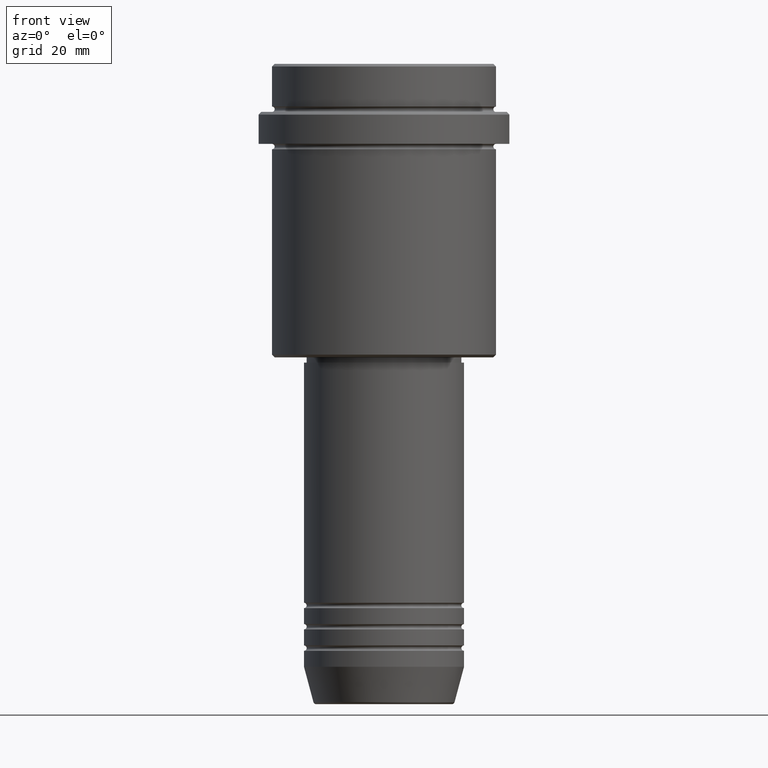
[diagram: clean part render]
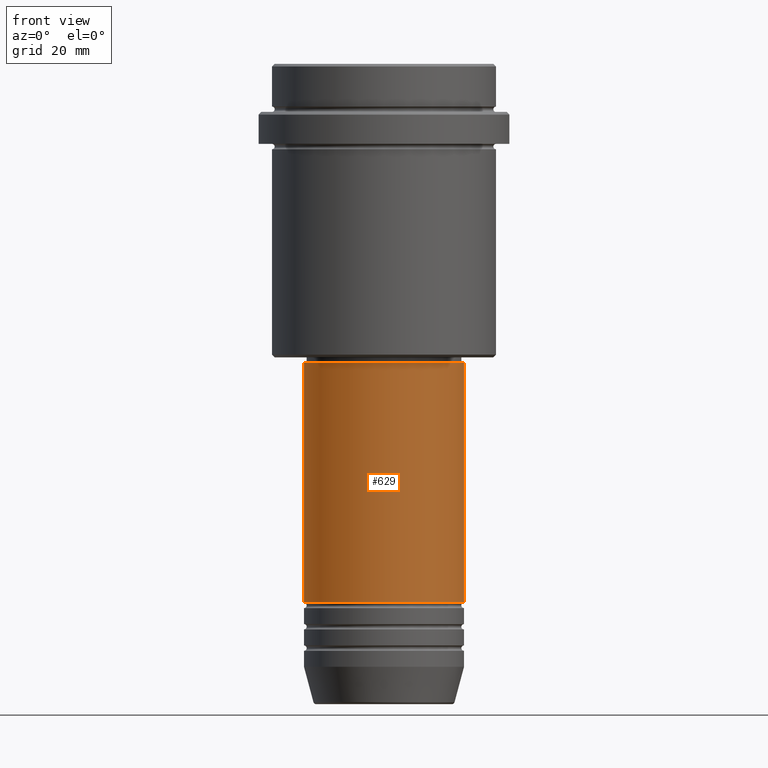
[diagram: same view with one face highlighted and labeled with its STEP entity id]
A machine part, front view. The second image highlights one B-rep face of the part: STEP entity #629.
In plain terms, the highlighted cylindrical surface (partial cylindrical patch) has radius 15 mm, axis along (-0, -0, 1).
Its self-contained STEP definition (entity closure, byte-faithful):
#35 = DIRECTION ( 'NONE',  ( -0.000000000000000000, -0.000000000000000000, 1.000000000000000000 ) ) ;
#36 = ORIENTED_EDGE ( 'NONE', *, *, #588, .T. ) ;
#55 = CARTESIAN_POINT ( 'NONE',  ( 0.000000000000000000, 0.000000000000000000, -100.9999999999999005 ) ) ;
#64 = CARTESIAN_POINT ( 'NONE',  ( 0.000000000000000000, 0.000000000000000000, -56.00000000000002132 ) ) ;
#136 = ORIENTED_EDGE ( 'NONE', *, *, #559, .T. ) ;
#154 = CARTESIAN_POINT ( 'NONE',  ( -15.00000000000000000, 1.836970198721029589E-15, 0.000000000000000000 ) ) ;
#175 = EDGE_CURVE ( 'NONE', #342, #904, #1012, .T. ) ;
#189 = EDGE_CURVE ( 'NONE', #904, #653, #435, .T. ) ;
#251 = EDGE_LOOP ( 'NONE', ( #880, #36, #136, #376 ) ) ;
#285 = DIRECTION ( 'NONE',  ( -0.000000000000000000, -0.000000000000000000, 1.000000000000000000 ) ) ;
#294 = CARTESIAN_POINT ( 'NONE',  ( -15.00000000000000000, 1.836970198721029589E-15, -100.9999999999999005 ) ) ;
#304 = DIRECTION ( 'NONE',  ( 1.000000000000000000, 0.000000000000000000, 0.000000000000000000 ) ) ;
#342 = VERTEX_POINT ( 'NONE', #294 ) ;
#359 = FACE_OUTER_BOUND ( 'NONE', #251, .T. ) ;
#369 = DIRECTION ( 'NONE',  ( -0.000000000000000000, -0.000000000000000000, 1.000000000000000000 ) ) ;
#376 = ORIENTED_EDGE ( 'NONE', *, *, #189, .F. ) ;
#395 = DIRECTION ( 'NONE',  ( -0.000000000000000000, -0.000000000000000000, 1.000000000000000000 ) ) ;
#435 = CIRCLE ( 'NONE', #1263, 15.00000000000000000 ) ;
#456 = VECTOR ( 'NONE', #35, 1000.000000000000000 ) ;
#474 = CARTESIAN_POINT ( 'NONE',  ( 15.00000000000000000, 0.000000000000000000, -100.9999999999999005 ) ) ;
#493 = CARTESIAN_POINT ( 'NONE',  ( 15.00000000000000000, 0.000000000000000000, 0.000000000000000000 ) ) ;
#554 = VERTEX_POINT ( 'NONE', #474 ) ;
#559 = EDGE_CURVE ( 'NONE', #554, #653, #605, .T. ) ;
#588 = EDGE_CURVE ( 'NONE', #342, #554, #618, .T. ) ;
#605 = LINE ( 'NONE', #493, #826 ) ;
#618 = CIRCLE ( 'NONE', #1374, 15.00000000000000000 ) ;
#629 = ADVANCED_FACE ( 'NONE', ( #359 ), #797, .T. ) ;
#653 = VERTEX_POINT ( 'NONE', #814 ) ;
#711 = CARTESIAN_POINT ( 'NONE',  ( 0.000000000000000000, 0.000000000000000000, 0.000000000000000000 ) ) ;
#797 = CYLINDRICAL_SURFACE ( 'NONE', #1330, 15.00000000000000000 ) ;
#814 = CARTESIAN_POINT ( 'NONE',  ( 15.00000000000000000, 0.000000000000000000, -56.00000000000002132 ) ) ;
#826 = VECTOR ( 'NONE', #369, 1000.000000000000000 ) ;
#880 = ORIENTED_EDGE ( 'NONE', *, *, #175, .F. ) ;
#904 = VERTEX_POINT ( 'NONE', #970 ) ;
#920 = DIRECTION ( 'NONE',  ( 1.000000000000000000, 0.000000000000000000, 0.000000000000000000 ) ) ;
#970 = CARTESIAN_POINT ( 'NONE',  ( -15.00000000000000000, 1.836970198721029589E-15, -56.00000000000002132 ) ) ;
#1012 = LINE ( 'NONE', #154, #456 ) ;
#1130 = DIRECTION ( 'NONE',  ( -0.000000000000000000, -0.000000000000000000, 1.000000000000000000 ) ) ;
#1263 = AXIS2_PLACEMENT_3D ( 'NONE', #64, #395, #304 ) ;
#1330 = AXIS2_PLACEMENT_3D ( 'NONE', #711, #285, #1359 ) ;
#1359 = DIRECTION ( 'NONE',  ( 1.000000000000000000, 0.000000000000000000, 0.000000000000000000 ) ) ;
#1374 = AXIS2_PLACEMENT_3D ( 'NONE', #55, #1130, #920 ) ;